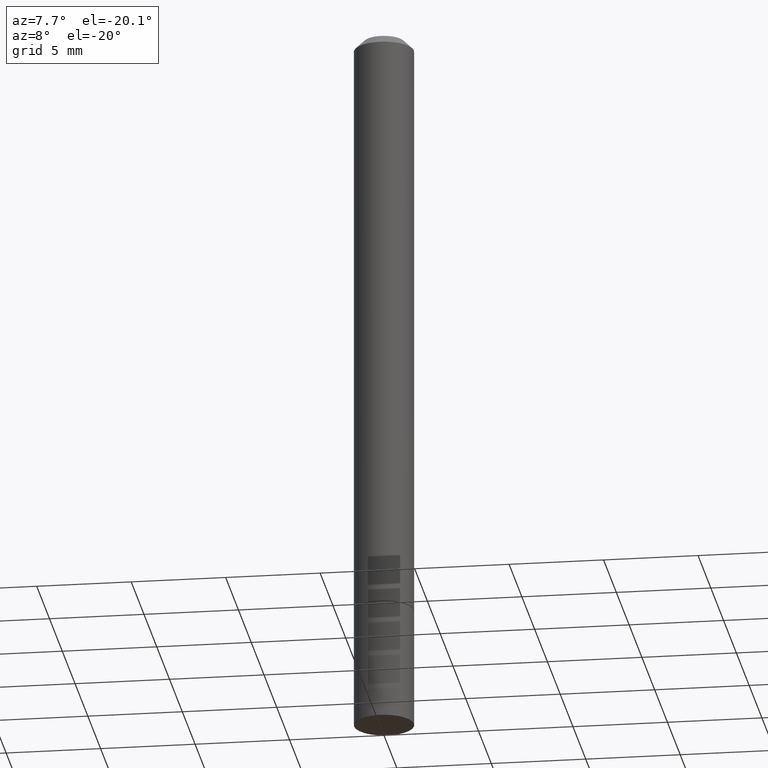
[diagram: clean part render]
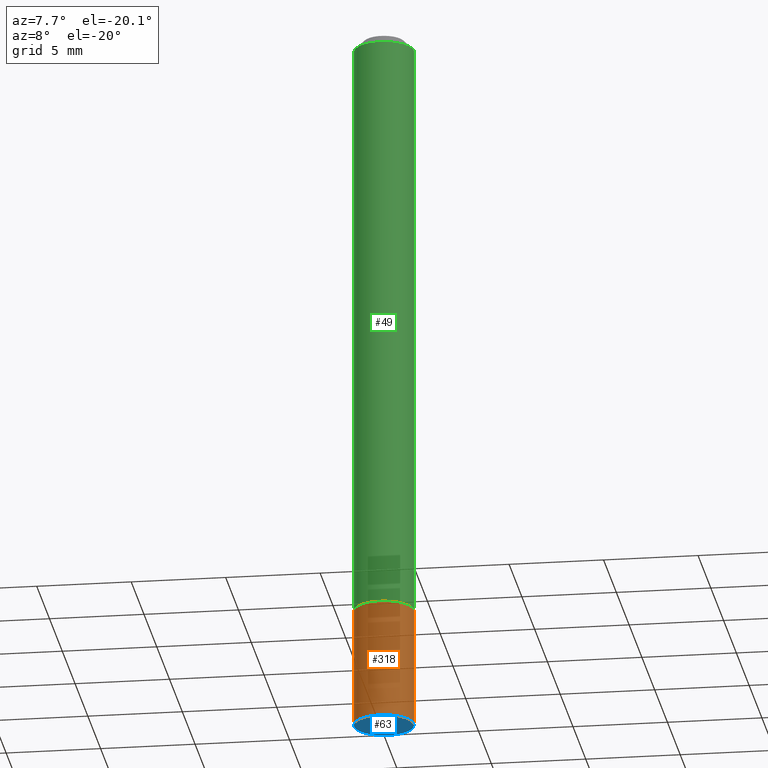
[diagram: same view with three faces highlighted in distinct colors, each labeled with its STEP entity id]
A machine part, auxiliary view with three faces highlighted in distinct colors.
Their STEP definitions:

[orange] entity #318 — the highlighted cylindrical surface (edge-blend (fillet) strip) has radius 1.5875 mm, axis along (-0, 0, 1).
#6 = DIRECTION ( 'NONE',  ( -2.445468806185136597E-29, 3.491481338843145583E-15, 1.000000000000000000 ) ) ;
#15 = VERTEX_POINT ( 'NONE', #217 ) ;
#16 = DIRECTION ( 'NONE',  ( -2.445468806185136877E-29, 3.491481338843145188E-15, 1.000000000000000000 ) ) ;
#35 = CARTESIAN_POINT ( 'NONE',  ( 0.06250000000000001388, -4.364351673553918173E-16, 3.047610484872460571E-30 ) ) ;
#64 = AXIS2_PLACEMENT_3D ( 'NONE', #113, #6, #117 ) ;
#70 = VERTEX_POINT ( 'NONE', #234 ) ;
#72 = AXIS2_PLACEMENT_3D ( 'NONE', #214, #92, #265 ) ;
#80 = AXIS2_PLACEMENT_3D ( 'NONE', #230, #199, #168 ) ;
#91 = EDGE_LOOP ( 'NONE', ( #131, #356, #322, #212 ) ) ;
#92 = DIRECTION ( 'NONE',  ( -2.445468806185136597E-29, 3.491481338843145583E-15, 1.000000000000000000 ) ) ;
#102 = VERTEX_POINT ( 'NONE', #286 ) ;
#113 = CARTESIAN_POINT ( 'NONE',  ( 3.056836007731421306E-29, -4.364351673553932471E-15, -1.250000000000000000 ) ) ;
#117 = DIRECTION ( 'NONE',  ( 1.000000000000000000, -6.982962677686269077E-15, 0.000000000000000000 ) ) ;
#131 = ORIENTED_EDGE ( 'NONE', *, *, #222, .F. ) ;
#145 = DIRECTION ( 'NONE',  ( -2.445468806185136877E-29, 3.491481338843145188E-15, 1.000000000000000000 ) ) ;
#168 = DIRECTION ( 'NONE',  ( 1.000000000000000000, -6.982962677686267499E-15, 4.876176775795935793E-29 ) ) ;
#175 = VERTEX_POINT ( 'NONE', #235 ) ;
#178 = CARTESIAN_POINT ( 'NONE',  ( -0.06250000000000001388, 4.440892098500627148E-16, -3.074334431409317165E-30 ) ) ;
#187 = EDGE_CURVE ( 'NONE', #70, #15, #239, .T. ) ;
#192 = CIRCLE ( 'NONE', #72, 0.06250000000000001388 ) ;
#199 = DIRECTION ( 'NONE',  ( -2.445468806185136597E-29, 3.491481338843145583E-15, 1.000000000000000000 ) ) ;
#200 = VECTOR ( 'NONE', #145, 39.37007874015748143 ) ;
#212 = ORIENTED_EDGE ( 'NONE', *, *, #187, .F. ) ;
#214 = CARTESIAN_POINT ( 'NONE',  ( 3.668203209277704895E-29, -5.237222008264718177E-15, -1.500000000000000222 ) ) ;
#217 = CARTESIAN_POINT ( 'NONE',  ( 0.06250000000000001388, -4.800786840909324141E-15, -1.250000000000000000 ) ) ;
#222 = EDGE_CURVE ( 'NONE', #102, #70, #284, .T. ) ;
#230 = CARTESIAN_POINT ( 'NONE',  ( 0.000000000000000000, 0.000000000000000000, 0.000000000000000000 ) ) ;
#234 = CARTESIAN_POINT ( 'NONE',  ( -0.06250000000000001388, -4.356697631059263102E-15, -1.250000000000000000 ) ) ;
#235 = CARTESIAN_POINT ( 'NONE',  ( 0.06250000000000001388, -5.673657175620109846E-15, -1.500000000000000222 ) ) ;
#239 = CIRCLE ( 'NONE', #64, 0.06250000000000001388 ) ;
#241 = EDGE_CURVE ( 'NONE', #175, #15, #352, .T. ) ;
#259 = VECTOR ( 'NONE', #16, 39.37007874015748143 ) ;
#265 = DIRECTION ( 'NONE',  ( 1.000000000000000000, -6.982962677686261189E-15, 0.000000000000000000 ) ) ;
#283 = EDGE_CURVE ( 'NONE', #102, #175, #192, .T. ) ;
#284 = LINE ( 'NONE', #178, #200 ) ;
#286 = CARTESIAN_POINT ( 'NONE',  ( -0.06250000000000001388, -4.356697631059263102E-15, -1.500000000000000222 ) ) ;
#297 = CYLINDRICAL_SURFACE ( 'NONE', #80, 0.06250000000000001388 ) ;
#318 = ADVANCED_FACE ( 'NONE', ( #365 ), #297, .T. ) ;
#322 = ORIENTED_EDGE ( 'NONE', *, *, #241, .T. ) ;
#352 = LINE ( 'NONE', #35, #259 ) ;
#356 = ORIENTED_EDGE ( 'NONE', *, *, #283, .T. ) ;
#365 = FACE_OUTER_BOUND ( 'NONE', #91, .T. ) ;

[blue] entity #63 — the highlighted planar face has unit normal (0, -0, -1).
#29 = DIRECTION ( 'NONE',  ( -1.000000000000000000, 6.982962677686265922E-15, -4.876176775795935793E-29 ) ) ;
#39 = EDGE_LOOP ( 'NONE', ( #246, #94 ) ) ;
#63 = ADVANCED_FACE ( 'NONE', ( #202 ), #172, .T. ) ;
#72 = AXIS2_PLACEMENT_3D ( 'NONE', #214, #92, #265 ) ;
#73 = CARTESIAN_POINT ( 'NONE',  ( 3.668203209277704895E-29, -5.237222008264718177E-15, -1.500000000000000222 ) ) ;
#92 = DIRECTION ( 'NONE',  ( -2.445468806185136597E-29, 3.491481338843145583E-15, 1.000000000000000000 ) ) ;
#94 = ORIENTED_EDGE ( 'NONE', *, *, #283, .F. ) ;
#97 = DIRECTION ( 'NONE',  ( -2.445468806185136597E-29, 3.491481338843145583E-15, 1.000000000000000000 ) ) ;
#102 = VERTEX_POINT ( 'NONE', #286 ) ;
#153 = CIRCLE ( 'NONE', #360, 0.06250000000000001388 ) ;
#172 = PLANE ( 'NONE',  #207 ) ;
#175 = VERTEX_POINT ( 'NONE', #235 ) ;
#192 = CIRCLE ( 'NONE', #72, 0.06250000000000001388 ) ;
#202 = FACE_OUTER_BOUND ( 'NONE', #39, .T. ) ;
#207 = AXIS2_PLACEMENT_3D ( 'NONE', #281, #269, #29 ) ;
#214 = CARTESIAN_POINT ( 'NONE',  ( 3.668203209277704895E-29, -5.237222008264718177E-15, -1.500000000000000222 ) ) ;
#235 = CARTESIAN_POINT ( 'NONE',  ( 0.06250000000000001388, -5.673657175620109846E-15, -1.500000000000000222 ) ) ;
#246 = ORIENTED_EDGE ( 'NONE', *, *, #316, .F. ) ;
#265 = DIRECTION ( 'NONE',  ( 1.000000000000000000, -6.982962677686261189E-15, 0.000000000000000000 ) ) ;
#269 = DIRECTION ( 'NONE',  ( 2.438088387897960049E-29, -3.491481338843145188E-15, -1.000000000000000000 ) ) ;
#281 = CARTESIAN_POINT ( 'NONE',  ( 4.364351673554284500E-16, 0.06249999999999478195, -1.500000000000000444 ) ) ;
#283 = EDGE_CURVE ( 'NONE', #102, #175, #192, .T. ) ;
#286 = CARTESIAN_POINT ( 'NONE',  ( -0.06250000000000001388, -4.356697631059263102E-15, -1.500000000000000222 ) ) ;
#316 = EDGE_CURVE ( 'NONE', #175, #102, #153, .T. ) ;
#360 = AXIS2_PLACEMENT_3D ( 'NONE', #73, #97, #362 ) ;
#362 = DIRECTION ( 'NONE',  ( 1.000000000000000000, -6.982962677686261189E-15, 0.000000000000000000 ) ) ;

[green] entity #49 — the highlighted cylindrical surface (edge-blend (fillet) strip) has radius 1.5875 mm, axis along (-0, 0, 1).
#4 = AXIS2_PLACEMENT_3D ( 'NONE', #127, #197, #107 ) ;
#14 = DIRECTION ( 'NONE',  ( 1.000000000000000000, -6.982962677686261189E-15, 0.000000000000000000 ) ) ;
#27 = EDGE_CURVE ( 'NONE', #205, #305, #141, .T. ) ;
#33 = LINE ( 'NONE', #288, #115 ) ;
#38 = DIRECTION ( 'NONE',  ( -2.445468806185136597E-29, 3.491481338843145583E-15, 1.000000000000000000 ) ) ;
#44 = DIRECTION ( 'NONE',  ( -2.445468806185136877E-29, 3.491481338843145188E-15, 1.000000000000000000 ) ) ;
#47 = DIRECTION ( 'NONE',  ( 1.000000000000000000, -6.982962677686266711E-15, 0.000000000000000000 ) ) ;
#49 = ADVANCED_FACE ( 'NONE', ( #52 ), #249, .T. ) ;
#52 = FACE_OUTER_BOUND ( 'NONE', #248, .T. ) ;
#55 = EDGE_CURVE ( 'NONE', #215, #205, #366, .T. ) ;
#75 = CARTESIAN_POINT ( 'NONE',  ( -0.06250000000000001388, 4.440892098500627148E-16, -3.074334431409317165E-30 ) ) ;
#76 = DIRECTION ( 'NONE',  ( -2.445468806185136877E-29, 3.491481338843145188E-15, 1.000000000000000000 ) ) ;
#107 = DIRECTION ( 'NONE',  ( 1.000000000000000000, -6.982962677686267499E-15, 4.876176775795935793E-29 ) ) ;
#115 = VECTOR ( 'NONE', #76, 39.37007874015748143 ) ;
#119 = CARTESIAN_POINT ( 'NONE',  ( -0.06249999999999995143, 3.666055405785282233E-16, -0.02000000000000005246 ) ) ;
#127 = CARTESIAN_POINT ( 'NONE',  ( 0.000000000000000000, 0.000000000000000000, 0.000000000000000000 ) ) ;
#130 = CARTESIAN_POINT ( 'NONE',  ( 4.890937612370285420E-31, -6.982962677686308865E-17, -0.02000000000000005246 ) ) ;
#132 = CARTESIAN_POINT ( 'NONE',  ( 0.06249999999999995143, -4.986107516375834292E-16, -0.02000000000000005246 ) ) ;
#139 = EDGE_CURVE ( 'NONE', #144, #305, #33, .T. ) ;
#141 = CIRCLE ( 'NONE', #243, 0.06249999999999995143 ) ;
#144 = VERTEX_POINT ( 'NONE', #179 ) ;
#167 = ORIENTED_EDGE ( 'NONE', *, *, #27, .F. ) ;
#174 = CARTESIAN_POINT ( 'NONE',  ( -0.06250000000000008327, -1.771255699645910018E-15, -1.248999999999999888 ) ) ;
#179 = CARTESIAN_POINT ( 'NONE',  ( 0.06250000000000008327, -4.797295359570480345E-15, -1.248999999999999888 ) ) ;
#183 = CIRCLE ( 'NONE', #299, 0.06250000000000008327 ) ;
#186 = ORIENTED_EDGE ( 'NONE', *, *, #139, .T. ) ;
#197 = DIRECTION ( 'NONE',  ( -2.445468806185136597E-29, 3.491481338843145583E-15, 1.000000000000000000 ) ) ;
#205 = VERTEX_POINT ( 'NONE', #119 ) ;
#215 = VERTEX_POINT ( 'NONE', #174 ) ;
#243 = AXIS2_PLACEMENT_3D ( 'NONE', #130, #276, #47 ) ;
#247 = VECTOR ( 'NONE', #44, 39.37007874015748143 ) ;
#248 = EDGE_LOOP ( 'NONE', ( #350, #361, #186, #167 ) ) ;
#249 = CYLINDRICAL_SURFACE ( 'NONE', #4, 0.06250000000000001388 ) ;
#267 = EDGE_CURVE ( 'NONE', #215, #144, #183, .T. ) ;
#276 = DIRECTION ( 'NONE',  ( -2.445468806185136597E-29, 3.491481338843145583E-15, 1.000000000000000000 ) ) ;
#288 = CARTESIAN_POINT ( 'NONE',  ( 0.06250000000000001388, -4.364351673553918173E-16, 3.047610484872460571E-30 ) ) ;
#299 = AXIS2_PLACEMENT_3D ( 'NONE', #321, #38, #14 ) ;
#305 = VERTEX_POINT ( 'NONE', #132 ) ;
#321 = CARTESIAN_POINT ( 'NONE',  ( 3.054390538925235704E-29, -4.360860192215088675E-15, -1.248999999999999888 ) ) ;
#350 = ORIENTED_EDGE ( 'NONE', *, *, #55, .F. ) ;
#361 = ORIENTED_EDGE ( 'NONE', *, *, #267, .T. ) ;
#366 = LINE ( 'NONE', #75, #247 ) ;